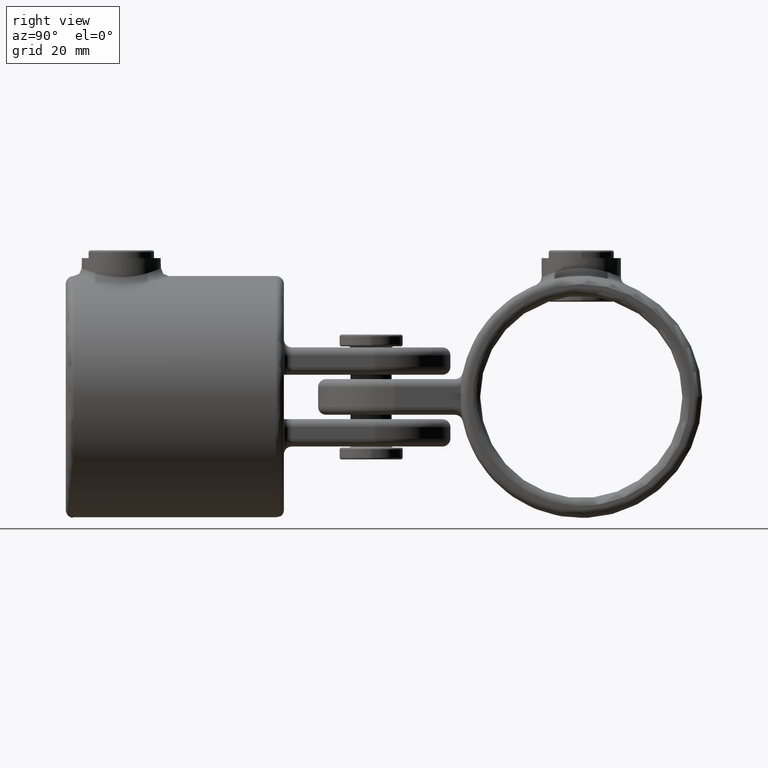
[diagram: clean part render]
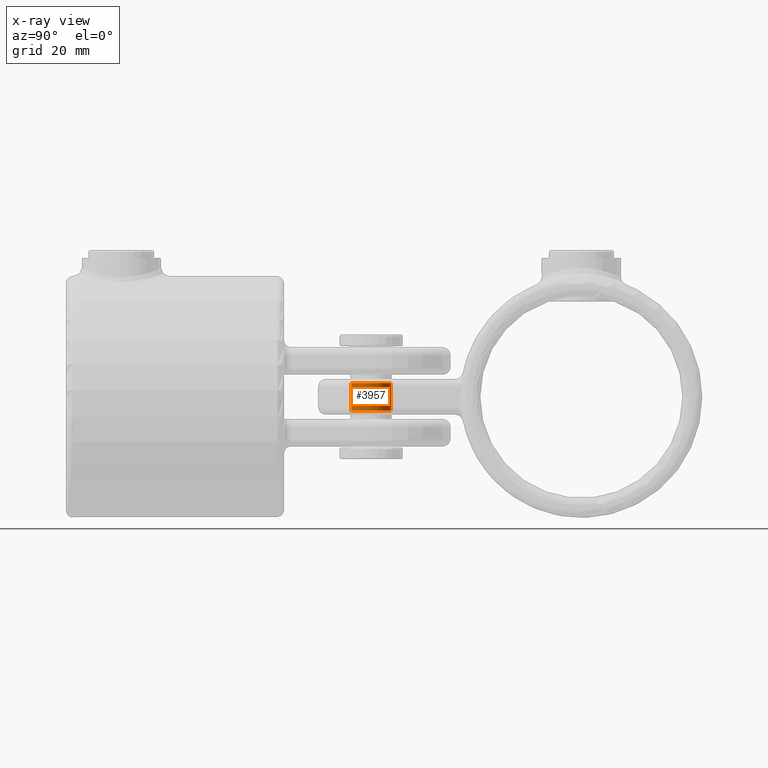
[diagram: x-ray — body ghosted, one internal face saturated and labeled with its STEP entity id]
A machine part, right view, then the same camera in x-ray: the body is ghosted and one INTERNAL B-rep face — a face not visible from any outside direction — is saturated and labeled: STEP entity #3957.
In plain terms, the highlighted cylindrical surface (bore or boss wall) has radius 5 mm, axis along (0, 0, 1).
Its self-contained STEP definition (entity closure, byte-faithful):
#39 = DIRECTION ( 'NONE',  ( 1.000000000000000000, 0.000000000000000000, 0.000000000000000000 ) ) ;
#182 = CYLINDRICAL_SURFACE ( 'NONE', #1965, 4.999999999999997335 ) ;
#322 = CARTESIAN_POINT ( 'NONE',  ( -30.49999999999999645, -1.040834085586084257E-14, -53.00000000000000000 ) ) ;
#534 = EDGE_CURVE ( 'NONE', #4070, #4070, #758, .T. ) ;
#688 = ORIENTED_EDGE ( 'NONE', *, *, #2380, .T. ) ;
#758 = CIRCLE ( 'NONE', #921, 4.999999999999997335 ) ;
#829 = FACE_OUTER_BOUND ( 'NONE', #3841, .T. ) ;
#921 = AXIS2_PLACEMENT_3D ( 'NONE', #4819, #39, #4028 ) ;
#985 = DIRECTION ( 'NONE',  ( 0.000000000000000000, 0.000000000000000000, -1.000000000000000000 ) ) ;
#1511 = DIRECTION ( 'NONE',  ( 0.000000000000000000, 0.000000000000000000, -1.000000000000000000 ) ) ;
#1965 = AXIS2_PLACEMENT_3D ( 'NONE', #322, #3917, #1511 ) ;
#1968 = ORIENTED_EDGE ( 'NONE', *, *, #534, .T. ) ;
#2380 = EDGE_CURVE ( 'NONE', #3009, #3009, #4182, .T. ) ;
#3009 = VERTEX_POINT ( 'NONE', #4072 ) ;
#3803 = CARTESIAN_POINT ( 'NONE',  ( -3.499999999999999556, -1.040834085586084257E-14, -53.00000000000000000 ) ) ;
#3841 = EDGE_LOOP ( 'NONE', ( #688 ) ) ;
#3917 = DIRECTION ( 'NONE',  ( 1.000000000000000000, 0.000000000000000000, 0.000000000000000000 ) ) ;
#3957 = ADVANCED_FACE ( 'NONE', ( #829, #4971 ), #182, .F. ) ;
#4028 = DIRECTION ( 'NONE',  ( 0.000000000000000000, 0.000000000000000000, -1.000000000000000000 ) ) ;
#4070 = VERTEX_POINT ( 'NONE', #4429 ) ;
#4072 = CARTESIAN_POINT ( 'NONE',  ( -3.499999999999999556, -1.040834085586084257E-14, -57.99999999999999289 ) ) ;
#4182 = CIRCLE ( 'NONE', #4623, 4.999999999999997335 ) ;
#4211 = EDGE_LOOP ( 'NONE', ( #1968 ) ) ;
#4429 = CARTESIAN_POINT ( 'NONE',  ( 3.499999999999999556, -1.040834085586084257E-14, -57.99999999999999289 ) ) ;
#4577 = DIRECTION ( 'NONE',  ( -1.000000000000000000, -0.000000000000000000, -0.000000000000000000 ) ) ;
#4623 = AXIS2_PLACEMENT_3D ( 'NONE', #3803, #4577, #985 ) ;
#4819 = CARTESIAN_POINT ( 'NONE',  ( 3.499999999999999556, -1.040834085586084257E-14, -53.00000000000000000 ) ) ;
#4971 = FACE_OUTER_BOUND ( 'NONE', #4211, .T. ) ;